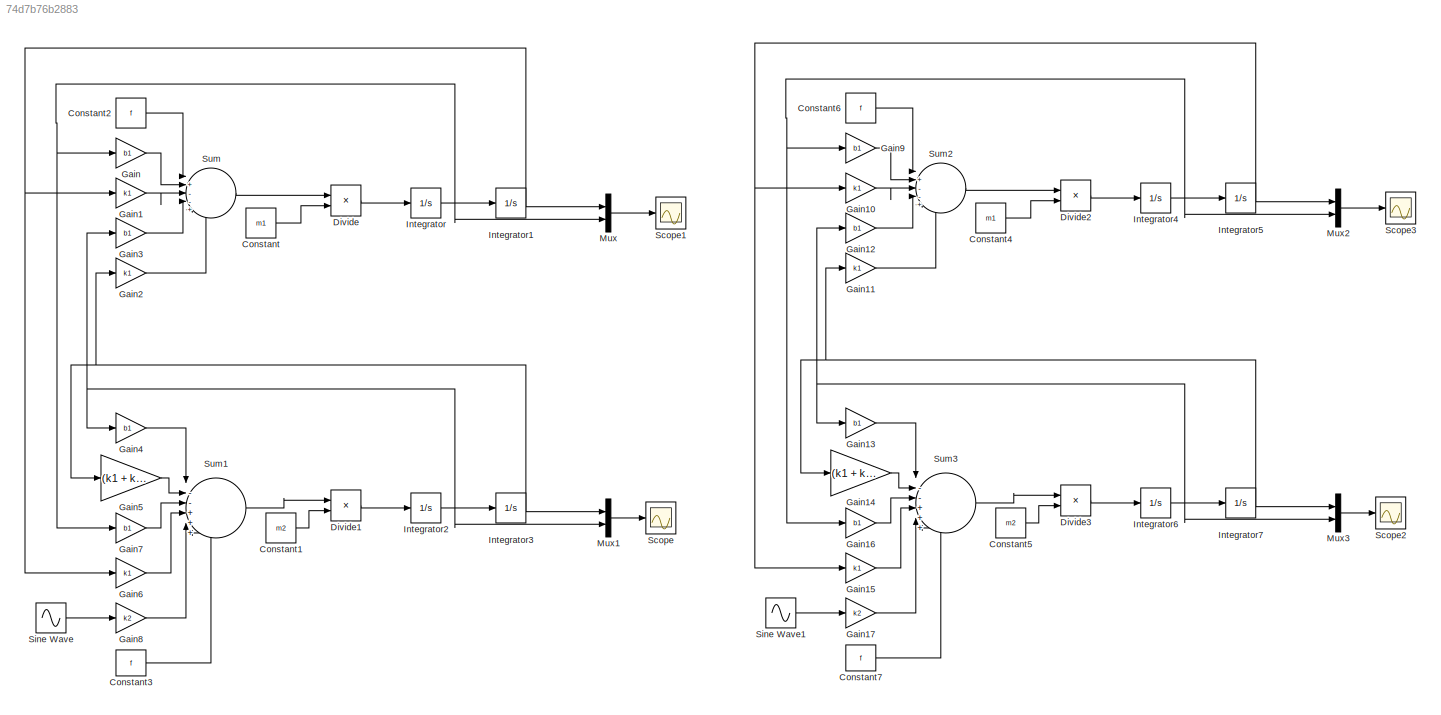
MODEL slx_74d7b76b2883
KIND model
CONFIG AbsTol = auto
CONFIG EnableMultiTasking = off
CONFIG FixedStep = auto
CONFIG InitFcn = m1 = 290;   % Masa 1 \nm2 = 59;    % Masa 2 \nk1 = 16182; % Constante del resorte 1 \nk2 = 19000; % Constante del resorte 2 \nb1 = 1000;  % Coeficiente de amortiguamiento\nf = 0;      % Fuerza externa
CONFIG MaxStep = auto
CONFIG MinStep = auto
CONFIG RelTol = 1e-3
CONFIG SampleTimeConstraint = Unconstrained
CONFIG SolverName = VariableStepAuto
CONFIG StartTime = 0.0
CONFIG StopTime = 10
BLOCK [Constant] Constant
  Value = m1
BLOCK [Constant] Constant1
  Value = m2
BLOCK [Constant] Constant2
  Value = f
BLOCK [Constant] Constant3
  Value = f
BLOCK [Constant] Constant4
  Value = m1
BLOCK [Constant] Constant5
  Value = m2
BLOCK [Constant] Constant6
  Value = f
BLOCK [Constant] Constant7
  Value = f
BLOCK [Product] Divide
  Inputs = */
BLOCK [Product] Divide1
  Inputs = */
BLOCK [Product] Divide2
  Inputs = */
BLOCK [Product] Divide3
  Inputs = */
BLOCK [Gain] Gain
  Gain = b1
BLOCK [Gain] Gain1
  Gain = k1
BLOCK [Gain] Gain10
  Gain = k1
BLOCK [Gain] Gain11
  Gain = k1
BLOCK [Gain] Gain12
  Gain = b1
BLOCK [Gain] Gain13
  Gain = b1
BLOCK [Gain] Gain14
  Gain = (k1 + k2)
BLOCK [Gain] Gain15
  Gain = k1
BLOCK [Gain] Gain16
  Gain = b1
BLOCK [Gain] Gain17
  Gain = k2
BLOCK [Gain] Gain2
  Gain = k1
BLOCK [Gain] Gain3
  Gain = b1
BLOCK [Gain] Gain4
  Gain = b1
BLOCK [Gain] Gain5
  Gain = (k1 + k2)
BLOCK [Gain] Gain6
  Gain = k1
BLOCK [Gain] Gain7
  Gain = b1
BLOCK [Gain] Gain8
  Gain = k2
BLOCK [Gain] Gain9
  Gain = b1
BLOCK [Integrator] Integrator
BLOCK [Integrator] Integrator1
BLOCK [Integrator] Integrator2
BLOCK [Integrator] Integrator3
BLOCK [Integrator] Integrator4
BLOCK [Integrator] Integrator5
BLOCK [Integrator] Integrator6
BLOCK [Integrator] Integrator7
BLOCK [Mux] Mux
  DisplayOption = bar
  Inputs = 2
BLOCK [Mux] Mux1
  DisplayOption = bar
  Inputs = 2
BLOCK [Mux] Mux2
  DisplayOption = bar
  Inputs = 2
BLOCK [Mux] Mux3
  DisplayOption = bar
  Inputs = 2
BLOCK [Scope] Scope
  Floating = off
  NumInputPorts = 1
  ScopeSpecificationString = Simulink.scopes.TimeScopeBlockCfg('CurrentConfiguration', extmgr.ConfigurationSet(extmgr.Configuration('Core','General UI',true),extmgr.Configuration('Core','Source UI',true),extmgr.Configuration('Sources','WiredSimulink',true),extmgr.Configuration('Visuals','Time Domain',true,'SerializedDisplays',{struct('MinYLimReal','-0.11883','MaxYLimReal','0.12129','YLabelReal','','MinYLimMag','0.00000','MaxY...<+1463ch>
BLOCK [Scope] Scope1
  Floating = off
  NumInputPorts = 1
  ScopeSpecificationString = Simulink.scopes.TimeScopeBlockCfg('CurrentConfiguration', extmgr.ConfigurationSet(extmgr.Configuration('Core','General UI',true),extmgr.Configuration('Core','Source UI',true),extmgr.Configuration('Sources','WiredSimulink',true,'DataLoggingVariableName','ScopeData1'),extmgr.Configuration('Visuals','Time Domain',true,'SerializedDisplays',{struct('MinYLimReal','-0.1435','MaxYLimReal','0.16133','YLabe...<+1470ch>
BLOCK [Scope] Scope2
  Floating = off
  NumInputPorts = 1
  ScopeSpecificationString = Simulink.scopes.TimeScopeBlockCfg('CurrentConfiguration', extmgr.ConfigurationSet(extmgr.Configuration('Core','General UI',true),extmgr.Configuration('Core','Source UI',true),extmgr.Configuration('Sources','WiredSimulink',true,'DataLoggingVariableName','ScopeData2'),extmgr.Configuration('Visuals','Time Domain',true,'SerializedDisplays',{struct('MinYLimReal','-0.44079','MaxYLimReal','0.36903','YLab...<+1473ch>
BLOCK [Scope] Scope3
  Floating = off
  NumInputPorts = 1
  ScopeSpecificationString = Simulink.scopes.TimeScopeBlockCfg('CurrentConfiguration', extmgr.ConfigurationSet(extmgr.Configuration('Core','General UI',true),extmgr.Configuration('Core','Source UI',true),extmgr.Configuration('Sources','WiredSimulink',true,'DataLoggingVariableName','ScopeData3'),extmgr.Configuration('Visuals','Time Domain',true,'SerializedDisplays',{struct('MinYLimReal','-0.04838','MaxYLimReal','0.06592','YLab...<+1502ch>
BLOCK [Sin] Sine Wave
  Amplitude = 0.05
  Frequency = 0.5* pi
  SampleTime = 0
BLOCK [Sin] Sine Wave1
  Amplitude = 0.05
  Frequency = 20* pi
  SampleTime = 0
BLOCK [Sum] Sum
  Inputs = |+--++
BLOCK [Sum] Sum1
  Inputs = |--+++-
BLOCK [Sum] Sum2
  Inputs = |+--++
BLOCK [Sum] Sum3
  Inputs = |--+++-
LINE Constant1:1 -> Divide1:2
LINE Constant2:1 -> Sum:1
LINE Constant3:1 -> Sum1:6
LINE Constant4:1 -> Divide2:2
LINE Constant5:1 -> Divide3:2
LINE Constant6:1 -> Sum2:1
LINE Constant7:1 -> Sum3:6
LINE Constant:1 -> Divide:2
LINE Divide1:1 -> Integrator2:1
LINE Divide2:1 -> Integrator4:1
LINE Divide3:1 -> Integrator6:1
LINE Divide:1 -> Integrator:1
LINE Gain10:1 -> Sum2:3
LINE Gain11:1 -> Sum2:5
LINE Gain12:1 -> Sum2:4
LINE Gain13:1 -> Sum3:1
LINE Gain14:1 -> Sum3:2
LINE Gain15:1 -> Sum3:4
LINE Gain16:1 -> Sum3:3
LINE Gain17:1 -> Sum3:5
LINE Gain1:1 -> Sum:3
LINE Gain2:1 -> Sum:5
LINE Gain3:1 -> Sum:4
LINE Gain4:1 -> Sum1:1
LINE Gain5:1 -> Sum1:2
LINE Gain6:1 -> Sum1:4
LINE Gain7:1 -> Sum1:3
LINE Gain8:1 -> Sum1:5
LINE Gain9:1 -> Sum2:2
LINE Gain:1 -> Sum:2
NET Integrator1:1 -> Gain1:1, Gain6:1, Mux:1
NET Integrator2:1 -> Gain3:1, Gain4:1, Integrator3:1, Mux1:2
NET Integrator3:1 -> Gain2:1, Gain5:1, Mux1:1
NET Integrator4:1 -> Gain16:1, Gain9:1, Integrator5:1, Mux2:2
NET Integrator5:1 -> Gain10:1, Gain15:1, Mux2:1
NET Integrator6:1 -> Gain12:1, Gain13:1, Integrator7:1, Mux3:2
NET Integrator7:1 -> Gain11:1, Gain14:1, Mux3:1
NET Integrator:1 -> Gain7:1, Gain:1, Integrator1:1, Mux:2
LINE Mux1:1 -> Scope:1
LINE Mux2:1 -> Scope3:1
LINE Mux3:1 -> Scope2:1
LINE Mux:1 -> Scope1:1
LINE Sine Wave1:1 -> Gain17:1
LINE Sine Wave:1 -> Gain8:1
LINE Sum1:1 -> Divide1:1
LINE Sum2:1 -> Divide2:1
LINE Sum3:1 -> Divide3:1
LINE Sum:1 -> Divide:1
note: NET lines group one-source signal fan-out (src -> all destinations, sorted); 1:1 wires keep LINE
